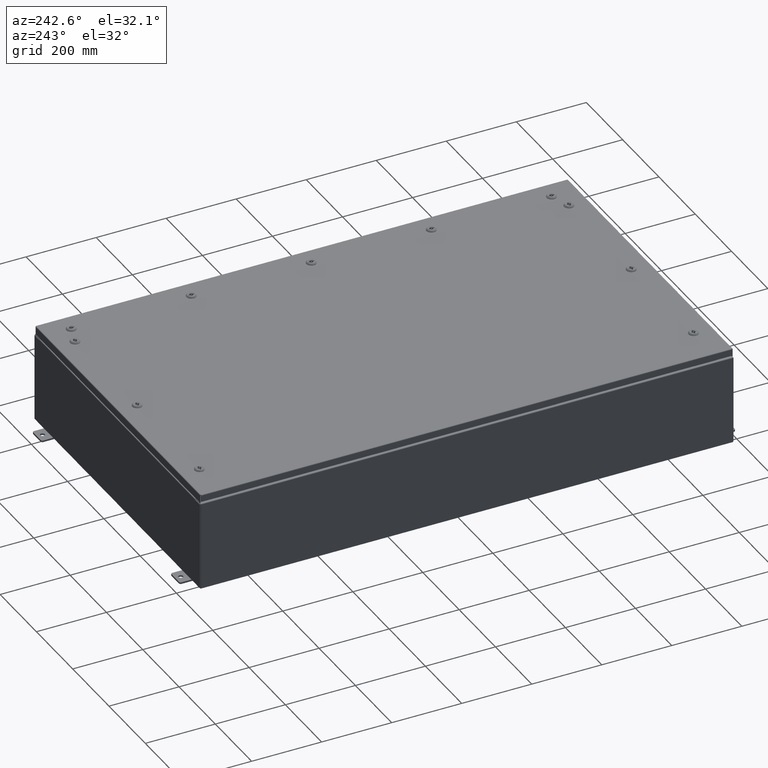
[diagram: clean part render]
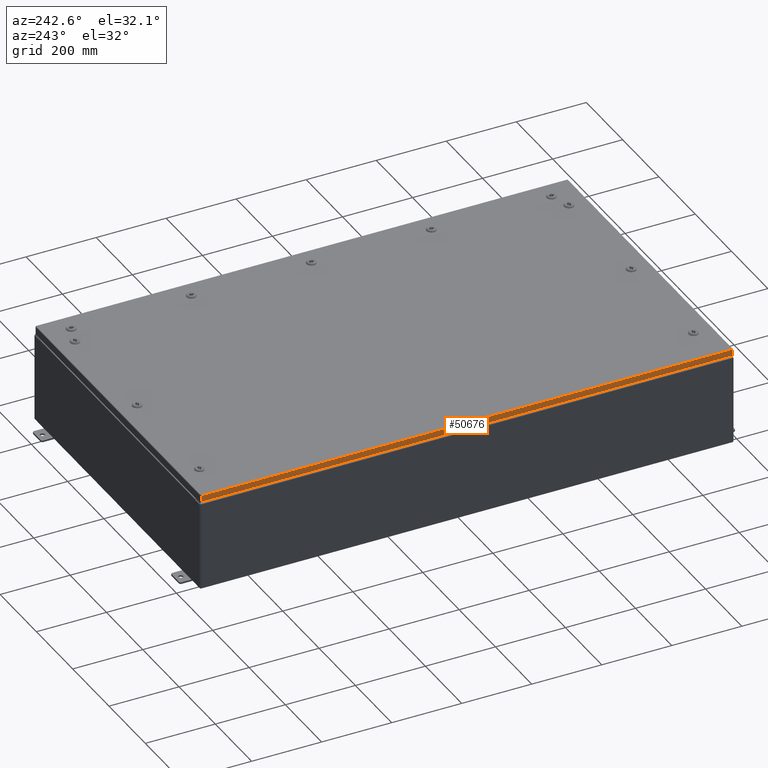
[diagram: same view with one face highlighted and labeled with its STEP entity id]
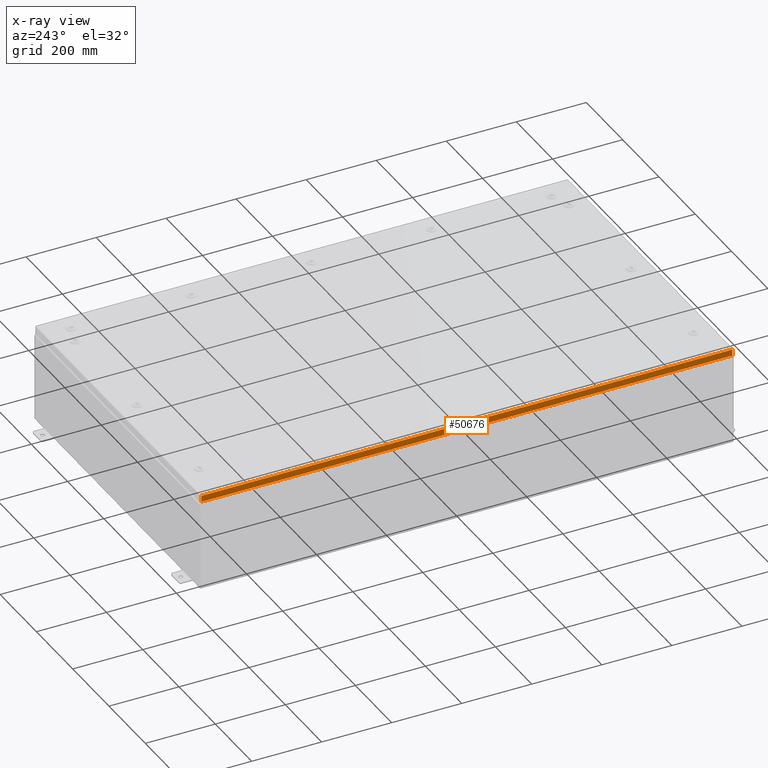
[diagram: x-ray of the same camera — body ghosted, the highlighted face saturated]
A machine part, auxiliary view. The second image highlights one B-rep face of the part: STEP entity #50676.
The next image is the same camera in x-ray: the body ghosted, the highlighted face saturated — about 0% of this face is hidden behind the body in this view.
In plain terms, the highlighted planar face has unit normal (1, -0, -0).
Its self-contained STEP definition (entity closure, byte-faithful):
#1422 = CARTESIAN_POINT ( 'NONE',  ( -17.93750000000000000, -29.93749999999998900, -0.08770000000000004200 ) ) ;
#2425 = VERTEX_POINT ( 'NONE', #3722 ) ;
#2861 = VECTOR ( 'NONE', #6838, 39.37007874015748100 ) ;
#3623 = PLANE ( 'NONE',  #34929 ) ;
#3722 = CARTESIAN_POINT ( 'NONE',  ( -17.93749999999999600, 29.84865786437627500, -0.08769999999999567000 ) ) ;
#4980 = ORIENTED_EDGE ( 'NONE', *, *, #33589, .F. ) ;
#5619 = VECTOR ( 'NONE', #46048, 39.37007874015748100 ) ;
#5683 = VERTEX_POINT ( 'NONE', #39068 ) ;
#6560 = LINE ( 'NONE', #42385, #19062 ) ;
#6838 = DIRECTION ( 'NONE',  ( -7.300136601023486500E-017, -1.000000000000000000, -7.300136601023502500E-017 ) ) ;
#9601 = EDGE_CURVE ( 'NONE', #2425, #5683, #18668, .T. ) ;
#10085 = ORIENTED_EDGE ( 'NONE', *, *, #66447, .F. ) ;
#14043 = CARTESIAN_POINT ( 'NONE',  ( -17.93749999999999600, 29.84865786437627800, 2.631174488043270700E-013 ) ) ;
#14334 = DIRECTION ( 'NONE',  ( -3.034122441942816500E-015, 0.0000000000000000000, -1.000000000000000000 ) ) ;
#17164 = CARTESIAN_POINT ( 'NONE',  ( -17.93750000000000000, -29.84865786437625700, -0.07469999999999976700 ) ) ;
#18668 = LINE ( 'NONE', #1422, #2861 ) ;
#19062 = VECTOR ( 'NONE', #42162, 39.37007874015748100 ) ;
#33550 = CARTESIAN_POINT ( 'NONE',  ( -17.93750000000000000, -29.84865786437625300, -0.7949999999999996000 ) ) ;
#33589 = EDGE_CURVE ( 'NONE', #5683, #38776, #58430, .T. ) ;
#34929 = AXIS2_PLACEMENT_3D ( 'NONE', #41016, #46318, #14334 ) ;
#35493 = CARTESIAN_POINT ( 'NONE',  ( -17.93749999999999600, 29.84865786437628200, -0.7949999999999923800 ) ) ;
#35872 = EDGE_LOOP ( 'NONE', ( #57035, #65481, #10085, #4980 ) ) ;
#35941 = EDGE_CURVE ( 'NONE', #2425, #68303, #60800, .T. ) ;
#38486 = DIRECTION ( 'NONE',  ( -3.034122441942816500E-015, 6.982962677686267500E-015, -1.000000000000000000 ) ) ;
#38776 = VERTEX_POINT ( 'NONE', #33550 ) ;
#39068 = CARTESIAN_POINT ( 'NONE',  ( -17.93750000000000000, -29.84865786437625700, -0.08769999999999787700 ) ) ;
#41016 = CARTESIAN_POINT ( 'NONE',  ( -17.93749999999999600, 1.309462002808583700E-015, 5.468538495836083800E-014 ) ) ;
#42162 = DIRECTION ( 'NONE',  ( 7.300136601023501300E-017, 1.000000000000000000, 1.231898051422716000E-016 ) ) ;
#42385 = CARTESIAN_POINT ( 'NONE',  ( -17.93750000000000000, -29.93749999999998900, -0.7949999999999997100 ) ) ;
#46048 = DIRECTION ( 'NONE',  ( -3.034122441942816500E-015, 6.982962677686267500E-015, -1.000000000000000000 ) ) ;
#46318 = DIRECTION ( 'NONE',  ( 1.000000000000000000, -7.300136601023464300E-017, -3.034122441942816500E-015 ) ) ;
#50676 = ADVANCED_FACE ( 'NONE', ( #65265 ), #3623, .F. ) ;
#57035 = ORIENTED_EDGE ( 'NONE', *, *, #9601, .F. ) ;
#58430 = LINE ( 'NONE', #17164, #60123 ) ;
#60123 = VECTOR ( 'NONE', #38486, 39.37007874015748100 ) ;
#60800 = LINE ( 'NONE', #14043, #5619 ) ;
#65265 = FACE_OUTER_BOUND ( 'NONE', #35872, .T. ) ;
#65481 = ORIENTED_EDGE ( 'NONE', *, *, #35941, .T. ) ;
#66447 = EDGE_CURVE ( 'NONE', #38776, #68303, #6560, .T. ) ;
#68303 = VERTEX_POINT ( 'NONE', #35493 ) ;